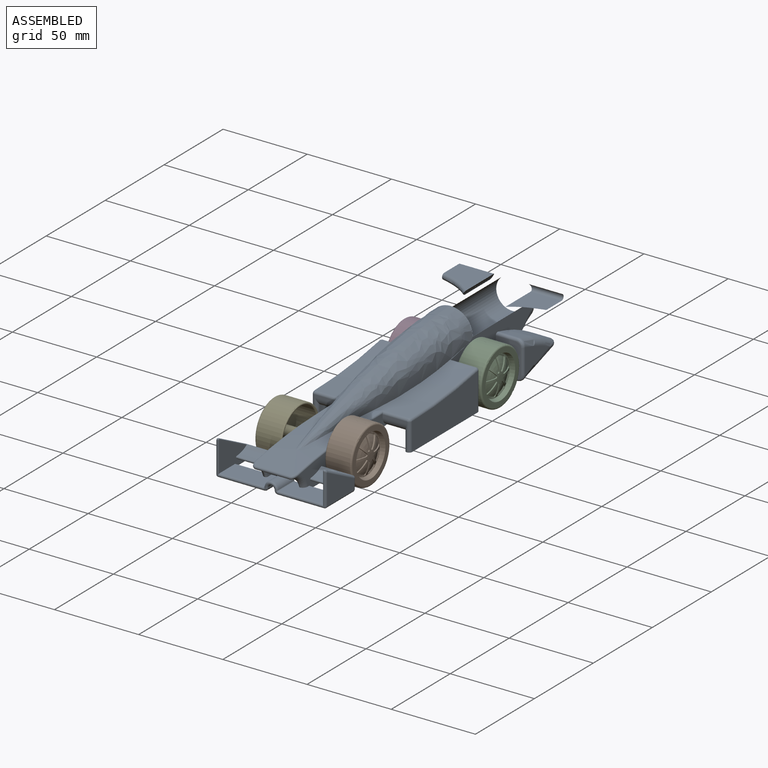
[diagram: assembled view]
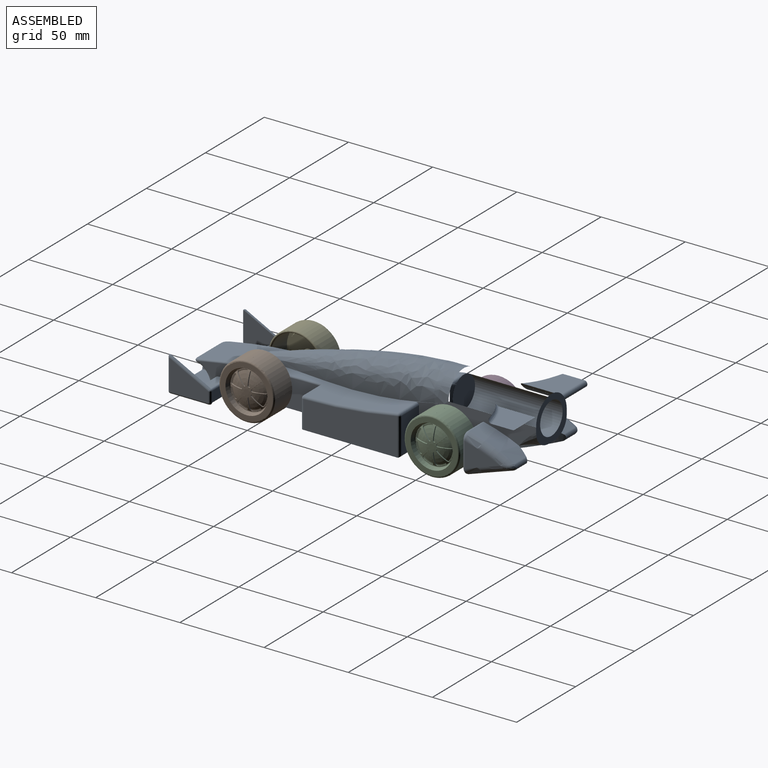
[diagram: assembled view, second angle]
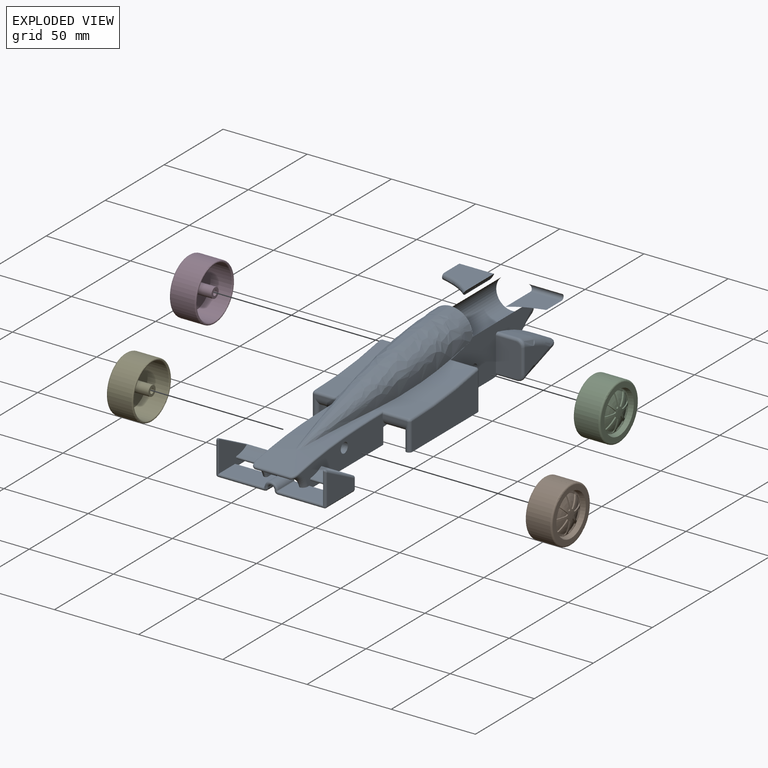
[diagram: exploded view]
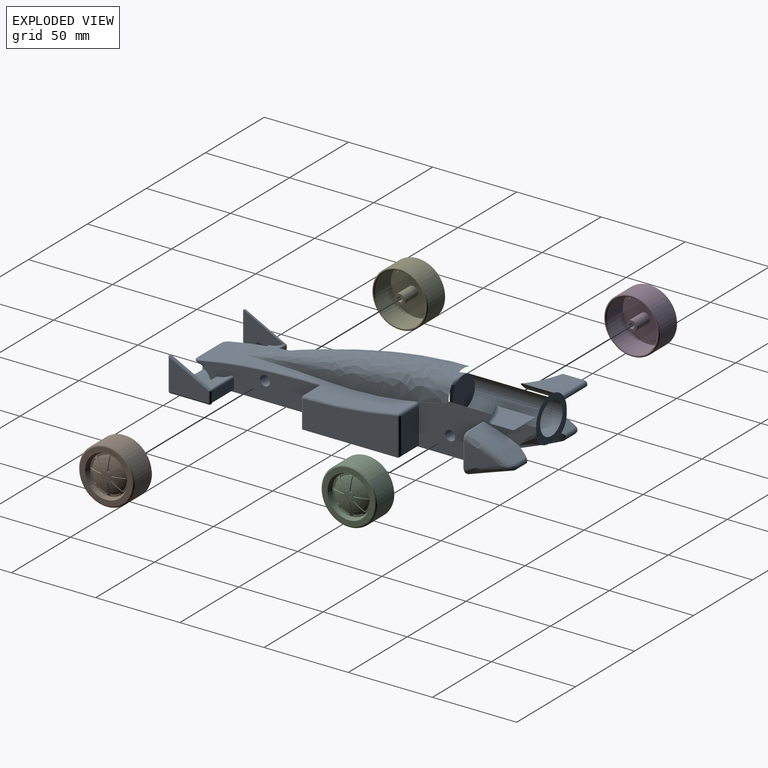
[diagram: exploded view, second angle]
ASSEMBLY  parts=5 mates=4
PART A: 213 faces, bbox 66.4x207.1x43.1 mm
  f0: plane 1.49x1.33mm, normal (0,1,0), area 0.2mm2, adj f1,f196,f197,f198
  f1: torus R=3mm, axis (0,-1,0), area 28.3mm2, adj f0,f2,f192,f193,f194,f195,f196,f198
  f2: plane 1.49x1.33mm, normal (0,1,0), area 0.2mm2, adj f1,f3,f192,f195
  f3: cylinder r=1mm len=5.5mm, axis (-1,0,0), area 16.5mm2, adj f2,f4,f190,f191,f192,f195
  f4: plane 26.64x13.11mm, normal (0,0,1), area 333.1mm2, adj f3,f5,f163,f164,f186,f187,f188,f189
  f5: torus R=11.48mm, axis (-1,0,0), area 17.6mm2, adj f4,f6,f163,f191
  f6: plane 21.63x11.6mm, normal (0,0,-1), area 219.5mm2, adj f5,f7,f159,f160,f161,f162,f163,f191
  f7: cylinder r=125.44mm len=19.34mm, axis (-1,0,0), area 368.9mm2, adj f6,f8,f159,f191
  f8: plane 19x9.23mm, normal (0,-0.15,-0.99), area 177.5mm2, adj f7,f9,f159,f191
  f9: cylinder r=5mm len=19mm, axis (-1,0,0), area 25.4mm2, adj f8,f10,f159,f191
  f10: plane 21.94x19mm, normal (0,0.11,-0.99), area 419.5mm2, adj f9,f11,f159,f191
  f11: cylinder r=387.43mm len=51.24mm, axis (-1,0,0), area 1625.9mm2, adj f10,f12,f115,f116,f117,f154,f156,f157
  f12: cylinder r=111.73mm len=55.49mm, axis (0,0,-1), area 618.8mm2, adj f11,f13,f112,f113,f114,f115,f158
  f13: plane 92.61x19.75mm, normal (0,0,-1), area 618.7mm2, adj f12,f14,f106,f107,f108,f109,f110,f111
  f14: cylinder r=20mm len=15.75mm, axis (-1,0,0), area 39.8mm2, adj f13,f15,f103,f104,f105,f106,f111
  f15: cylinder r=73.13mm len=22.35mm, axis (0,0,-1), area 223.8mm2, adj f14,f16,f28,f102,f105,f106
  f16: cylinder r=30mm len=8.87mm, axis (0,0,-1), area 46mm2, adj f15,f17,f27,f105
  f17: cylinder r=2mm len=9.6mm, axis (1,0,0), area 43.9mm2, adj f16,f18,f27,f105
  f18: bspline ~10.02x5.52mm, area 17.1mm2, adj f17,f19,f26
  f19: torus R=1599.08mm, axis (1,0,0), area 152.1mm2, adj f18,f20,f104,f105
  f20: plane 21.11x14.81mm, normal (1,0,0), area 165.5mm2, adj f19,f21,f26,f104
  f21: cylinder r=1.5mm len=14.81mm, axis (0,0,1), area 34.9mm2, adj f20,f22,f24,f25
  f22: bspline ~4.87x4.6mm, area 14.3mm2, adj f21,f23,f25,f26
  f23: cylinder r=1.5mm len=12.25mm, axis (-1,0,0), area 33mm2, adj f22,f25,f27,f111
  f24: bspline ~5.14x4.63mm, area 14.7mm2, adj f21,f25,f103,f104
  f25: plane 19.98x14.75mm, normal (0,-1,0), area 291.9mm2, adj f21,f22,f23,f24,f103,f111
  f26: torus R=96.46mm, axis (1,0,0), area 161.9mm2, adj f18,f20,f22,f27
  f27: cylinder r=100.46mm len=26.83mm, axis (-1,0,0), area 343.2mm2, adj f16,f17,f23,f26,f111
  f28: bspline ~30.63x26mm, area 657.5mm2, adj f15,f29,f97,f98,f99,f102
  f29: bspline ~10.73x10.36mm, area 47.1mm2, adj f28,f30,f99
  f30: plane 72.19x29.89mm, normal (-1,0,0), area 1248.4mm2, adj f29,f31,f32,f33,f68,f69,f70,f71
  f31: cylinder r=3mm len=26mm, axis (-1,0,0), area 490.1mm2, adj f30,f111
  f32: cylinder r=13mm len=52mm, axis (0,-1,0), area 2123.7mm2, adj f30,f33,f99,f111
  f33: bspline ~143x31mm, area 4611.4mm2, adj f30,f32,f34,f63,f64,f65,f66,f67
  f34: cylinder r=289.27mm len=59mm, axis (-1,0,0), area 947.8mm2, adj f33,f35,f56,f57,f58,f62,f63,f67
  f35: torus R=290.27mm, axis (1,0,0), area 1mm2, adj f34,f36,f56,f164
  f36: torus R=579.98mm, axis (1,0,0), area 51.6mm2, adj f35,f37,f63,f164
  f37: torus R=275.43mm, axis (1,0,0), area 60.2mm2, adj f36,f38,f64,f164
  f38: bspline ~4.12x2.31mm, area 5.2mm2, adj f37,f39,f64,f163
  f39: bspline ~4.59x4.36mm, area 7mm2, adj f38,f40,f55,f163
  f40: cylinder r=5mm len=23.01mm, axis (1,0,0), area 32.7mm2, adj f39,f41,f55,f64
  f41: bspline ~4.59x4.36mm, area 7mm2, adj f40,f42,f55,f161
  f42: bspline ~4.52x2.39mm, area 5.2mm2, adj f41,f43,f64,f161
  f43: torus R=275.43mm, axis (-1,0,0), area 60.2mm2, adj f42,f44,f64,f154
  f44: torus R=579.98mm, axis (-1,0,0), area 51.6mm2, adj f43,f45,f65,f154
  f45: torus R=290.27mm, axis (-1,0,0), area 1mm2, adj f44,f46,f70,f154
  f46: cylinder r=1.5mm len=15.5mm, axis (-1,0,0), area 35mm2, adj f45,f47,f54,f70,f154
  f47: plane 16.42x14.5mm, normal (0,-1,0), area 22.2mm2, adj f46,f48,f49,f74,f154,f156
  f48: cylinder r=1.75mm len=14.91mm, axis (0,0,-1), area 35.4mm2, adj f47,f74,f156,f157
  f49: cylinder r=1.75mm len=16.42mm, axis (0,0,-1), area 45.1mm2, adj f47,f50,f54,f74
  f50: plane 55.75x22.16mm, normal (-1,0,0), area 1025mm2, adj f49,f51,f53,f74
  f51: cylinder r=1.5mm len=22.16mm, axis (0,0,1), area 50.4mm2, adj f50,f52,f72,f73
  f52: sphere r=1.5mm, area 4mm2, adj f51,f53,f71
  f53: torus R=290.77mm, axis (-1,0,0), area 131.8mm2, adj f50,f52,f54,f70
  f54: bspline ~2.14x2.14mm, area 4.4mm2, adj f46,f49,f53,f70
  f55: cylinder r=1mm len=20mm, axis (1,0,0), area 48.7mm2, adj f39,f40,f41,f162
  f56: cylinder r=1.5mm len=15.5mm, axis (-1,0,0), area 35mm2, adj f34,f35,f57,f107,f164
  f57: bspline ~2.14x1.85mm, area 4.4mm2, adj f34,f56,f58,f108
  f58: torus R=290.77mm, axis (1,0,0), area 131.8mm2, adj f34,f57,f59,f109
  f59: sphere r=1.5mm, area 4mm2, adj f58,f60,f62
  f60: cylinder r=1.5mm len=22.16mm, axis (0,0,-1), area 50.4mm2, adj f59,f61,f109,f110
  f61: plane 20.66x14.75mm, normal (0,1,0), area 304.8mm2, adj f60,f62,f110,f111
  f62: cylinder r=1.5mm len=14.75mm, axis (-1,0,0), area 39.2mm2, adj f34,f59,f61,f111
  f63: cylinder r=580.98mm len=32.84mm, axis (-1,0,0), area 182mm2, adj f33,f34,f36,f64
  f64: cylinder r=276.43mm len=40.48mm, axis (-1,0,0), area 859.7mm2, adj f33,f37,f38,f40,f42,f43,f63,f65
  f65: cylinder r=580.98mm len=32.84mm, axis (-1,0,0), area 182mm2, adj f33,f44,f64,f70
  f66: cylinder r=16.5mm len=2.37mm, axis (-1,0,0), area 0mm2, adj f33,f67,f111
  f67: plane 15.22x3.24mm, normal (0,-0.2,0.98), area 1.7mm2, adj f33,f34,f66,f111
  f68: cylinder r=16.5mm len=2.37mm, axis (-1,0,0), area 0mm2, adj f30,f33,f69
  f69: plane 15.22x3.24mm, normal (0,-0.2,0.98), area 1.7mm2, adj f30,f33,f68,f70
  f70: cylinder r=289.27mm len=59mm, axis (-1,0,0), area 947.8mm2, adj f30,f33,f45,f46,f53,f54,f65,f69
  f71: cylinder r=1.5mm len=14.75mm, axis (-1,0,0), area 39.2mm2, adj f30,f52,f70,f72
  f72: plane 20.66x14.75mm, normal (0,1,0), area 304.8mm2, adj f30,f51,f71,f73
  f73: cylinder r=1.5mm len=16.25mm, axis (-1,0,0), area 36.5mm2, adj f30,f51,f72,f74
  f74: plane 92.61x19.75mm, normal (0,0,-1), area 618.7mm2, adj f30,f47,f48,f49,f50,f73,f75,f76
  f75: cylinder r=3.5mm len=10.4mm, axis (0,0,-1), area 19.4mm2, adj f74,f76,f113,f157
  f76: plane 37.01x10.83mm, normal (1,0,0), area 297.9mm2, adj f74,f75,f77,f78,f79,f80,f81,f97
  f77: cylinder r=5mm len=19mm, axis (-1,0,0), area 30.9mm2, adj f76,f78,f106,f113
  f78: plane 19x1.41mm, normal (0,0,-1), area 26.7mm2, adj f76,f77,f79,f106
  f79: cylinder r=20mm len=19mm, axis (-1,0,0), area 128.9mm2, adj f76,f78,f80,f106
  f80: plane 19x10.52mm, normal (0,0.33,-0.94), area 205.9mm2, adj f76,f79,f102,f106
  f81: cylinder r=20mm len=15.75mm, axis (1,0,0), area 39.8mm2, adj f30,f74,f76,f82,f92,f93,f97
  f82: cylinder r=1595.08mm len=25.12mm, axis (1,0,0), area 351.4mm2, adj f81,f83,f90,f91,f97
  f83: torus R=1599.08mm, axis (-1,0,0), area 152.1mm2, adj f82,f84,f89,f92
  f84: plane 21.11x14.81mm, normal (-1,0,0), area 165.5mm2, adj f83,f85,f87,f92
  f85: torus R=96.46mm, axis (-1,0,0), area 161.9mm2, adj f84,f86,f89,f96
  f86: bspline ~4.99x4.72mm, area 14.3mm2, adj f85,f87,f94,f95
  f87: cylinder r=1.5mm len=14.81mm, axis (0,0,-1), area 34.9mm2, adj f84,f86,f88,f94
  f88: bspline ~5.53x4.76mm, area 14.7mm2, adj f87,f92,f93,f94
  f89: bspline ~10.02x5.52mm, area 17.1mm2, adj f83,f85,f90
  f90: cylinder r=2mm len=9.6mm, axis (-1,0,0), area 43.9mm2, adj f82,f89,f91,f96
  f91: cylinder r=30mm len=8.87mm, axis (0,0,-1), area 46mm2, adj f82,f90,f96,f97
  f92: torus R=16mm, axis (-1,0,0), area 6.2mm2, adj f81,f83,f84,f88
  f93: cylinder r=1.5mm len=12.25mm, axis (1,0,0), area 33.8mm2, adj f30,f81,f88,f94
  f94: plane 19.98x14.75mm, normal (0,-1,0), area 291.9mm2, adj f30,f86,f87,f88,f93,f95
  f95: cylinder r=1.5mm len=12.25mm, axis (1,0,0), area 33mm2, adj f30,f86,f94,f96
  f96: cylinder r=100.46mm len=26.83mm, axis (1,0,0), area 343.2mm2, adj f30,f85,f90,f91,f95
  f97: cylinder r=73.13mm len=22.35mm, axis (0,0,-1), area 223.8mm2, adj f28,f76,f81,f82,f91,f102
  f98: bspline ~10.73x10.36mm, area 47.1mm2, adj f28,f99,f111
  f99: plane 26.24x26.24mm, normal (0,1,0), area 271.1mm2, adj f28,f29,f30,f32,f98,f100,f111
  f100: cylinder r=9.5mm len=52mm, axis (0,1,0), area 3103.9mm2, adj f99,f101
  f101: plane 19x19mm, normal (0,1,0), area 283.5mm2, adj f100
  f102: bspline ~22.84x3.46mm, area 29.1mm2, adj f15,f28,f76,f80,f97,f106
  f103: cylinder r=1.5mm len=12.25mm, axis (-1,0,0), area 33.8mm2, adj f14,f24,f25,f111
  f104: torus R=16mm, axis (1,0,0), area 6.2mm2, adj f14,f19,f20,f24
  f105: cylinder r=1595.08mm len=25.12mm, axis (-1,0,0), area 351.4mm2, adj f14,f15,f16,f17,f19
  f106: plane 37.01x10.83mm, normal (-1,0,0), area 297.9mm2, adj f13,f14,f15,f77,f78,f79,f80,f102
  f107: plane 16.42x14.5mm, normal (0,-1,0), area 22.2mm2, adj f13,f56,f108,f112,f115,f164
  f108: cylinder r=1.75mm len=16.42mm, axis (0,0,1), area 45.1mm2, adj f13,f57,f107,f109
  f109: plane 55.75x22.16mm, normal (1,0,0), area 1025mm2, adj f13,f58,f60,f108
  f110: cylinder r=1.5mm len=16.25mm, axis (-1,0,0), area 36.5mm2, adj f13,f60,f61,f111
  f111: plane 72.19x29.89mm, normal (1,0,0), area 1248.4mm2, adj f13,f14,f23,f25,f27,f31,f32,f33
  f112: cylinder r=1.75mm len=14.91mm, axis (0,0,-1), area 35.4mm2, adj f12,f13,f107,f115
  f113: cylinder r=88.76mm len=30.3mm, axis (-1,0,0), area 609.9mm2, adj f12,f75,f76,f77,f106,f114,f157,f158
  f114: cylinder r=3.5mm len=10.4mm, axis (0,0,-1), area 19.4mm2, adj f12,f13,f106,f113
  f115: cylinder r=5mm len=14.49mm, axis (-1,0,0), area 108.2mm2, adj f11,f12,f107,f112,f164
  f116: cylinder r=1.75mm len=9.49mm, axis (0,0,-1), area 52.2mm2, adj f11,f164,f190,f191
  f117: cylinder r=1.75mm len=9.49mm, axis (0,0,-1), area 52.2mm2, adj f11,f118,f154,f159
  f118: plane 77.25x27.5mm, normal (0,0,-1), area 581.1mm2, adj f117,f119,f151,f152,f153,f154,f159,f197
  f119: cylinder r=1mm len=27.5mm, axis (-1,0,0), area 85.1mm2, adj f118,f120,f122,f128,f129,f130,f149,f150
  f120: plane 26.64x13.11mm, normal (0,0,1), area 333.1mm2, adj f119,f121,f150,f152,f154,f159,f160,f161
  f121: cylinder r=0.5mm len=13mm, axis (0,1,0), area 9.5mm2, adj f120,f122,f193,f196
  f122: torus R=1.5mm, axis (0,-1,0), area 2mm2, adj f119,f121,f123,f128
  f123: torus R=3mm, axis (0,-1,0), area 28.3mm2, adj f122,f124,f125,f126,f128,f129,f193,f194
  f124: torus R=1.5mm, axis (0,-1,0), area 2mm2, adj f123,f125,f188,f189
  f125: plane 1.49x1.33mm, normal (0,-1,0), area 0.2mm2, adj f123,f124,f126,f188
  f126: torus R=1mm, axis (0,-1,0), area 4mm2, adj f123,f125,f127,f188
  f127: cylinder r=2mm len=13mm, axis (0,-1,0), area 40.8mm2, adj f126,f190,f194,f195
  f128: plane 1.49x1.33mm, normal (0,-1,0), area 0.2mm2, adj f119,f122,f123,f129
  f129: torus R=1mm, axis (0,-1,0), area 4mm2, adj f119,f123,f128,f151
  f130: bspline ~1.54x1.25mm, area 1.4mm2, adj f119,f131,f153
  f131: cylinder r=1.25mm len=19mm, axis (0,0,-1), area 36.3mm2, adj f130,f132,f148,f149
  f132: plane 23x17.93mm, normal (-1,0,0), area 276.9mm2, adj f131,f133,f146,f147,f153
  f133: torus R=0.25mm, axis (-1,0,0), area 3.2mm2, adj f132,f134,f146,f153
  f134: torus R=1mm, axis (-1,0,0), area 1.3mm2, adj f133,f135,f144,f145,f150
  f135: cylinder r=1mm len=18.5mm, axis (1,0,0), area 37.8mm2, adj f134,f136,f143,f144,f150,f154
  f136: cylinder r=35mm len=18mm, axis (1,0,0), area 164.3mm2, adj f135,f137,f150,f154
  f137: cylinder r=0.75mm len=18mm, axis (1,0,0), area 38.3mm2, adj f136,f138,f150,f154
  f138: cylinder r=17mm len=18mm, axis (1,0,0), area 157.7mm2, adj f137,f139,f141,f150,f154
  f139: cylinder r=1mm len=18.5mm, axis (1,0,0), area 39.3mm2, adj f138,f140,f141,f143,f154
  f140: bspline ~1.46x1.25mm, area 0.9mm2, adj f139,f146,f147
  f141: cylinder r=0.5mm len=24.09mm, axis (0,0.89,-0.46), area 20.7mm2, adj f138,f139,f142,f147,f150
  f142: torus R=0.25mm, axis (-1,0,0), area 0.9mm2, adj f141,f148,f149,f150
  f143: plane 18.5x5.79mm, normal (0,1,0), area 107.2mm2, adj f135,f139,f146,f154
  f144: cylinder r=0.5mm len=0.26mm, axis (0,0,-1), area 0mm2, adj f134,f135,f146
  f145: cylinder r=0.5mm len=10mm, axis (0,1,0), area 7.5mm2, adj f134,f150,f152,f153
  f146: cylinder r=1.25mm len=6.05mm, axis (0,0,1), area 11.7mm2, adj f132,f133,f140,f143,f144
  f147: cylinder r=1.25mm len=24.43mm, axis (0,-0.89,0.46), area 51.7mm2, adj f132,f140,f141,f148
  f148: bspline ~2.05x1.66mm, area 1.4mm2, adj f131,f142,f147
  f149: cylinder r=0.5mm len=19mm, axis (0,0,1), area 14.6mm2, adj f119,f131,f142,f150
  f150: plane 24.19x19.75mm, normal (1,0,0), area 271.7mm2, adj f119,f120,f134,f135,f136,f137,f138,f141
  f151: cylinder r=2mm len=13mm, axis (0,-1,0), area 40.8mm2, adj f118,f129,f194,f198
  f152: cylinder r=1mm len=18.5mm, axis (-1,0,0), area 56.8mm2, adj f118,f120,f145,f150,f154
  f153: cylinder r=1.25mm len=23mm, axis (0,-1,0), area 44.9mm2, adj f118,f130,f132,f133,f145
  f154: plane 76.07x16.92mm, normal (-1,0,0), area 948.3mm2, adj f11,f43,f44,f45,f46,f47,f117,f118
  f155: cylinder r=3mm len=26mm, axis (-1,0,0), area 490.1mm2, adj f154,f164
  f156: cylinder r=5mm len=14.49mm, axis (-1,0,0), area 108.2mm2, adj f11,f47,f48,f154,f157
  f157: cylinder r=111.73mm len=55.49mm, axis (0,0,-1), area 618.8mm2, adj f11,f48,f74,f75,f113,f156,f158
  f158: plane 41.33x14.18mm, normal (0,0,-1), area 513.3mm2, adj f11,f12,f113,f157
  f159: plane 70.72x9.49mm, normal (1,0,0), area 522.7mm2, adj f6,f7,f8,f9,f10,f11,f117,f118
  f160: torus R=11.48mm, axis (-1,0,0), area 17.6mm2, adj f6,f120,f159,f161
  f161: torus R=13.42mm, axis (-1,0,0), area 47.3mm2, adj f6,f41,f42,f120,f154,f160,f162
  f162: cylinder r=10.42mm len=20mm, axis (-1,0,0), area 23.5mm2, adj f6,f55,f161,f163
  f163: torus R=13.42mm, axis (1,0,0), area 47.3mm2, adj f4,f5,f6,f38,f39,f162,f164
  f164: plane 76.07x16.92mm, normal (1,0,0), area 948.3mm2, adj f4,f11,f35,f36,f37,f56,f107,f115
  f165: plane 18.5x5.79mm, normal (0,1,0), area 107.2mm2, adj f164,f166,f181,f185
  f166: cylinder r=1.25mm len=6.05mm, axis (0,0,1), area 11.7mm2, adj f165,f167,f178,f179,f180
  f167: plane 23x17.93mm, normal (1,0,0), area 276.9mm2, adj f166,f168,f172,f177,f180
  f168: cylinder r=1.25mm len=23mm, axis (0,-1,0), area 44.9mm2, adj f167,f169,f171,f180,f190
  f169: cylinder r=0.5mm len=10mm, axis (0,1,0), area 7.5mm2, adj f168,f170,f186,f187
  f170: torus R=1mm, axis (1,0,0), area 1.3mm2, adj f169,f179,f180,f185,f187
  f171: bspline ~1.54x1.25mm, area 1.4mm2, adj f168,f172,f188
  f172: cylinder r=1.25mm len=19mm, axis (0,0,1), area 36.3mm2, adj f167,f171,f173,f176
  f173: cylinder r=0.5mm len=19mm, axis (0,0,-1), area 14.6mm2, adj f172,f174,f187,f188
  f174: torus R=0.25mm, axis (1,0,0), area 0.9mm2, adj f173,f175,f176,f187
  f175: cylinder r=0.5mm len=24.09mm, axis (0,-0.89,0.46), area 20.7mm2, adj f174,f177,f181,f182,f187
  f176: bspline ~2.05x1.66mm, area 1.4mm2, adj f172,f174,f177
  f177: cylinder r=1.25mm len=24.43mm, axis (0,0.89,-0.46), area 51.7mm2, adj f167,f175,f176,f178
  f178: bspline ~1.46x1.25mm, area 0.9mm2, adj f166,f177,f181
  f179: cylinder r=0.5mm len=0.26mm, axis (0,0,-1), area 0mm2, adj f166,f170,f185
  f180: torus R=0.25mm, axis (1,0,0), area 3.2mm2, adj f166,f167,f168,f170
  f181: cylinder r=1mm len=18.5mm, axis (-1,0,0), area 39.3mm2, adj f164,f165,f175,f178,f182
  f182: cylinder r=17mm len=18mm, axis (-1,0,0), area 157.7mm2, adj f164,f175,f181,f183,f187
  f183: cylinder r=0.75mm len=18mm, axis (-1,0,0), area 38.3mm2, adj f164,f182,f184,f187
  f184: cylinder r=35mm len=18mm, axis (-1,0,0), area 164.3mm2, adj f164,f183,f185,f187
  f185: cylinder r=1mm len=18.5mm, axis (-1,0,0), area 37.8mm2, adj f164,f165,f170,f179,f184,f187
  f186: cylinder r=1mm len=18.5mm, axis (-1,0,0), area 56.8mm2, adj f4,f164,f169,f187,f190
  f187: plane 24.19x19.75mm, normal (-1,0,0), area 271.7mm2, adj f4,f169,f170,f173,f174,f175,f182,f183
  f188: cylinder r=1mm len=27.5mm, axis (-1,0,0), area 85.1mm2, adj f4,f124,f125,f126,f171,f173,f187,f190
  f189: cylinder r=0.5mm len=13mm, axis (0,1,0), area 9.5mm2, adj f4,f124,f192,f193
  f190: plane 77.25x27.5mm, normal (0,0,-1), area 581.1mm2, adj f3,f116,f127,f164,f168,f186,f188,f191
  f191: plane 70.72x9.49mm, normal (-1,0,0), area 522.7mm2, adj f3,f4,f5,f6,f7,f8,f9,f10
  f192: torus R=1.5mm, axis (0,-1,0), area 2mm2, adj f1,f2,f3,f189
  f193: cylinder r=4mm len=13mm, axis (0,1,0), area 151.8mm2, adj f1,f121,f123,f189
  f194: cylinder r=2mm len=13mm, axis (0,1,0), area 81.7mm2, adj f1,f123,f127,f151
  f195: torus R=1mm, axis (0,-1,0), area 4mm2, adj f1,f2,f3,f127
  f196: torus R=1.5mm, axis (0,-1,0), area 2mm2, adj f0,f1,f121,f197
  f197: cylinder r=1mm len=5.5mm, axis (-1,0,0), area 16.5mm2, adj f0,f118,f120,f159,f196,f198
  f198: torus R=1mm, axis (0,-1,0), area 4mm2, adj f0,f1,f151,f197
  f199: cylinder r=13mm len=25.63mm, axis (0,-1,0), area 100.5mm2, adj f200,f202,f203,f204,f205
  f200: plane 22.44x20.47mm, normal (0,0,1), area 335.6mm2, adj f199,f201,f202,f205
  f201: plane 16.22x3.72mm, normal (-1,0,0), area 53.3mm2, adj f200,f202,f203,f204,f205
  f202: bspline ~22.7x12.01mm, area 61.1mm2, adj f199,f200,f201,f203
  f203: bspline ~22.7x12.01mm, area 57.5mm2, adj f199,f201,f202,f204
  f204: plane 20.73x18.4mm, normal (0,0,-1), area 291.3mm2, adj f199,f201,f203,f205
  f205: cylinder r=1.75mm len=20.45mm, axis (1,0,0), area 106.3mm2, adj f199,f200,f201,f204
  f206: cylinder r=13mm len=25.63mm, axis (0,-1,0), area 100.5mm2, adj f207,f209,f210,f211,f212
  f207: cylinder r=1.75mm len=20.45mm, axis (-1,0,0), area 106.3mm2, adj f206,f208,f209,f212
  f208: plane 16.22x3.72mm, normal (1,0,0), area 53.3mm2, adj f207,f209,f210,f211,f212
  f209: plane 20.73x18.4mm, normal (0,0,-1), area 291.3mm2, adj f206,f207,f208,f210
  f210: bspline ~22.68x12mm, area 57.5mm2, adj f206,f208,f209,f211
  f211: bspline ~22.68x12mm, area 61.1mm2, adj f206,f208,f210,f212
  f212: plane 22.44x20.47mm, normal (0,0,1), area 335.7mm2, adj f206,f207,f208,f211
PART B: 90 faces, bbox 16.1x36.1x36.1 mm
  f0: cylinder r=16.5mm len=16.5mm, axis (1,0,0), area 362.7mm2, adj f1,f3,f86,f88
  f1: torus R=15.5mm, axis (1,0,0), area 159.3mm2, adj f0,f2,f7,f84,f85,f86,f87,f88
  f2: cylinder r=16.5mm len=33mm, axis (1,0,0), area 1088.4mm2, adj f1,f3,f84,f87
  f3: torus R=15.81mm, axis (1,0,0), area 215.3mm2, adj f0,f2,f8,f84,f85,f86,f87,f88
  f4: torus R=13.24mm, axis (1,0,0), area 10.3mm2, adj f7,f15
  f5: cylinder r=1.55mm len=13mm, axis (1,0,0), area 126.6mm2, adj f6,f13
  f6: cone r=1.55mm half-angle=51.1deg, axis (-1,0,0), area 9.7mm2, adj f5
  f7: plane 31x31mm, normal (1,0,0), area 203.7mm2, adj f1,f4
  f8: cylinder r=15.12mm len=30.24mm, axis (1,0,0), area 1282.5mm2, adj f3,f9
  f9: plane 30.24x30.24mm, normal (-1,0,0), area 177.4mm2, adj f8,f10
  f10: cone r=13.12mm half-angle=16.7deg, axis (1,0,0), area 249.3mm2, adj f9,f11
  f11: plane 24.44x24.44mm, normal (-1,0,0), area 439.9mm2, adj f10,f12
  f12: cylinder r=3.05mm len=11.19mm, axis (1,0,0), area 214.4mm2, adj f11,f13
  f13: plane 6.1x6.1mm, normal (-1,0,0), area 21.7mm2, adj f5,f12
  f14: plane 26.24x26.24mm, normal (1,0,0), area 49.9mm2, adj f15,f17
  f15: cylinder r=13.12mm len=26.24mm, axis (1,0,0), area 0.6mm2, adj f4,f14
  f16: plane 3x3mm, normal (1,0,0), area 7.1mm2, adj f61
  f17: cone r=12.5mm half-angle=16.7deg, axis (1,0,0), area 188.9mm2, adj f14,f18
  f18: torus R=11.31mm, axis (1,0,0), area 65.6mm2, adj f17,f24,f30,f36,f42,f48,f54,f60
  f19: cylinder r=0.75mm len=1.28mm, axis (1,0,0), area 1.3mm2, adj f20,f23,f61,f68
  f20: plane 7.03x3.12mm, normal (0,-1,0), area 4.9mm2, adj f19,f21,f61,f68
  f21: cylinder r=1mm len=1.16mm, axis (1,0,0), area 1.1mm2, adj f20,f24,f61,f68,f69
  f22: cylinder r=1mm len=1.52mm, axis (1,0,0), area 1.1mm2, adj f23,f24,f61,f68,f69
  f23: plane 5.1x5.1mm, normal (0,0.71,-0.71), area 4.9mm2, adj f19,f22,f61,f68
  f24: cylinder r=11.05mm len=4.66mm, axis (1,0,0), area 1.8mm2, adj f18,f21,f22,f69
  f25: cylinder r=1mm len=1.16mm, axis (1,0,0), area 1.1mm2, adj f26,f30,f61,f70,f71
  f26: plane 7.03x3.12mm, normal (0,0,-1), area 4.9mm2, adj f25,f27,f61,f71
  f27: cylinder r=0.75mm len=1.28mm, axis (1,0,0), area 1.3mm2, adj f26,f29,f61,f71
  f28: cylinder r=1mm len=1.52mm, axis (1,0,0), area 1.1mm2, adj f29,f30,f61,f70,f71
  f29: plane 5.1x5.1mm, normal (0,-0.71,0.71), area 4.9mm2, adj f27,f28,f61,f71
  f30: cylinder r=11.05mm len=4.66mm, axis (1,0,0), area 1.8mm2, adj f18,f25,f28,f70
  f31: plane 7.03x3.12mm, normal (0,0,1), area 4.9mm2, adj f32,f35,f61,f72
  f32: cylinder r=1mm len=1.16mm, axis (1,0,0), area 1.1mm2, adj f31,f36,f61,f72,f73
  f33: cylinder r=1mm len=1.52mm, axis (1,0,0), area 1.1mm2, adj f34,f36,f61,f72,f73
  f34: plane 5.1x5.1mm, normal (0,-0.71,-0.71), area 4.9mm2, adj f33,f35,f61,f72
  f35: cylinder r=0.75mm len=1.28mm, axis (1,0,0), area 1.3mm2, adj f31,f34,f61,f72
  f36: cylinder r=11.05mm len=4.66mm, axis (1,0,0), area 1.8mm2, adj f18,f32,f33,f73
  f37: plane 5.1x5.1mm, normal (0,0.71,0.71), area 4.9mm2, adj f38,f41,f61,f80
  f38: cylinder r=1mm len=1.52mm, axis (1,0,0), area 1.1mm2, adj f37,f42,f61,f80,f81
  f39: cylinder r=1mm len=1.16mm, axis (1,0,0), area 1.1mm2, adj f40,f42,f61,f80,f81
  f40: plane 7.03x3.12mm, normal (0,-1,0), area 4.9mm2, adj f39,f41,f61,f80
  f41: cylinder r=0.75mm len=1.28mm, axis (1,0,0), area 1.3mm2, adj f37,f40,f61,f80
  f42: cylinder r=11.05mm len=4.66mm, axis (1,0,0), area 1.8mm2, adj f18,f38,f39,f81
  f43: plane 7.03x3.12mm, normal (0,1,0), area 4.9mm2, adj f44,f47,f61,f74
  f44: cylinder r=1mm len=1.16mm, axis (1,0,0), area 1.1mm2, adj f43,f48,f61,f74,f75
  f45: cylinder r=1mm len=1.52mm, axis (1,0,0), area 1.1mm2, adj f46,f48,f61,f74,f75
  f46: plane 5.1x5.1mm, normal (0,-0.71,0.71), area 4.9mm2, adj f45,f47,f61,f74
  f47: cylinder r=0.75mm len=1.28mm, axis (1,0,0), area 1.3mm2, adj f43,f46,f61,f74
  f48: cylinder r=11.05mm len=4.66mm, axis (1,0,0), area 1.8mm2, adj f18,f44,f45,f75
  f49: plane 5.1x5.1mm, normal (0,0.71,-0.71), area 4.9mm2, adj f50,f53,f61,f76
  f50: cylinder r=1mm len=1.52mm, axis (1,0,0), area 1.1mm2, adj f49,f54,f61,f76,f77
  f51: cylinder r=1mm len=1.16mm, axis (1,0,0), area 1.1mm2, adj f52,f54,f61,f76,f77
  f52: plane 7.03x3.12mm, normal (0,0,1), area 4.9mm2, adj f51,f53,f61,f76
  f53: cylinder r=0.75mm len=1.28mm, axis (1,0,0), area 1.3mm2, adj f49,f52,f61,f76
  f54: cylinder r=11.05mm len=4.66mm, axis (1,0,0), area 1.8mm2, adj f18,f50,f51,f77
  f55: plane 7.03x3.12mm, normal (0,0,-1), area 4.9mm2, adj f56,f59,f61,f78
  f56: cylinder r=1mm len=1.16mm, axis (1,0,0), area 1.1mm2, adj f55,f60,f61,f78,f79
  f57: cylinder r=1mm len=1.52mm, axis (1,0,0), area 1.1mm2, adj f58,f60,f61,f78,f79
  f58: plane 5.1x5.1mm, normal (0,0.71,0.71), area 4.9mm2, adj f57,f59,f61,f78
  f59: cylinder r=0.75mm len=1.28mm, axis (1,0,0), area 1.3mm2, adj f55,f58,f61,f78
  f60: cylinder r=11.05mm len=4.66mm, axis (1,0,0), area 1.8mm2, adj f18,f56,f57,f79
  f61: torus R=1.5mm, axis (1,0,0), area 131.6mm2, adj f16,f18,f19,f20,f21,f22,f23,f25
  f62: plane 5.1x5.1mm, normal (0,-0.71,-0.71), area 4.9mm2, adj f61,f63,f66,f82
  f63: cylinder r=1mm len=1.52mm, axis (1,0,0), area 1.1mm2, adj f61,f62,f67,f82,f83
  f64: cylinder r=1mm len=1.16mm, axis (1,0,0), area 1.1mm2, adj f61,f65,f67,f82,f83
  f65: plane 7.03x3.12mm, normal (0,1,0), area 4.9mm2, adj f61,f64,f66,f82
  f66: cylinder r=0.75mm len=1.28mm, axis (1,0,0), area 1.3mm2, adj f61,f62,f65,f82
  f67: cylinder r=11.05mm len=4.66mm, axis (1,0,0), area 1.8mm2, adj f18,f63,f64,f83
  f68: torus R=1.5mm, axis (1,0,0), area 29.3mm2, adj f19,f20,f21,f22,f23,f69
  f69: plane 6.16x3.12mm, normal (1,0,0), area 4.5mm2, adj f21,f22,f24,f68
  f70: plane 6.16x3.12mm, normal (1,0,0), area 4.5mm2, adj f25,f28,f30,f71
  f71: torus R=1.5mm, axis (1,0,0), area 29.3mm2, adj f25,f26,f27,f28,f29,f70
  f72: torus R=1.5mm, axis (1,0,0), area 29.3mm2, adj f31,f32,f33,f34,f35,f73
  f73: plane 6.16x3.12mm, normal (1,0,0), area 4.5mm2, adj f32,f33,f36,f72
  f74: torus R=1.5mm, axis (1,0,0), area 29.3mm2, adj f43,f44,f45,f46,f47,f75
  f75: plane 6.16x3.12mm, normal (1,0,0), area 4.5mm2, adj f44,f45,f48,f74
  f76: torus R=1.5mm, axis (1,0,0), area 29.3mm2, adj f49,f50,f51,f52,f53,f77
  f77: plane 6.16x3.12mm, normal (1,0,0), area 4.5mm2, adj f50,f51,f54,f76
  f78: torus R=1.5mm, axis (1,0,0), area 29.3mm2, adj f55,f56,f57,f58,f59,f79
  f79: plane 6.16x3.12mm, normal (1,0,0), area 4.5mm2, adj f56,f57,f60,f78
  f80: torus R=1.5mm, axis (1,0,0), area 29.3mm2, adj f37,f38,f39,f40,f41,f81
  f81: plane 6.16x3.12mm, normal (1,0,0), area 4.5mm2, adj f38,f39,f42,f80
  f82: torus R=1.5mm, axis (1,0,0), area 29.3mm2, adj f62,f63,f64,f65,f66,f83
  f83: plane 6.16x3.12mm, normal (1,0,0), area 4.5mm2, adj f63,f64,f67,f82
  f84: plane 14.18x0.01mm, normal (0,1,0), area 0.1mm2, adj f1,f2,f3,f85
  f85: plane 14.18x0.01mm, normal (0,0,1), area 0.1mm2, adj f1,f3,f84,f86
  f86: plane 14.18x0.01mm, normal (0,-1,0), area 0.1mm2, adj f0,f1,f3,f85
  f87: plane 14.18x0.01mm, normal (0,0,1), area 0.1mm2, adj f1,f2,f3,f89
  f88: plane 14.18x0.01mm, normal (0,0,-1), area 0.1mm2, adj f0,f1,f3,f89
  f89: plane 14.18x0.01mm, normal (0,1,0), area 0.1mm2, adj f1,f3,f87,f88
PART C: same geometry as B
PART D: same geometry as B
PART E: same geometry as B
PLACE A t=(-29.94,59.65,-30.28)mm
PLACE B t=(-1.25,-101.35,-48.28)mm
PLACE C t=(-1.25,8.65,-48.28)mm
PLACE D rot(axis=(0,1,0),180deg) t=(-58.63,8.65,-48.28)mm
PLACE E rot(axis=(0,1,0),180deg) t=(-58.63,-101.35,-48.28)mm
MATE fastened E.f0 <-> A.f9  axis (1,0,0) through (-42.94,-101.35,-48.28)mm
MATE fastened B.f0 <-> A.f155  axis (-1,0,0) through (-16.94,-101.35,-48.28)mm
MATE fastened D.f0 <-> A.f77  axis (-1,0,0) through (-42.94,8.65,-48.28)mm
MATE fastened C.f0 <-> A.f66  axis (1,0,0) through (-16.94,8.65,-48.28)mm
